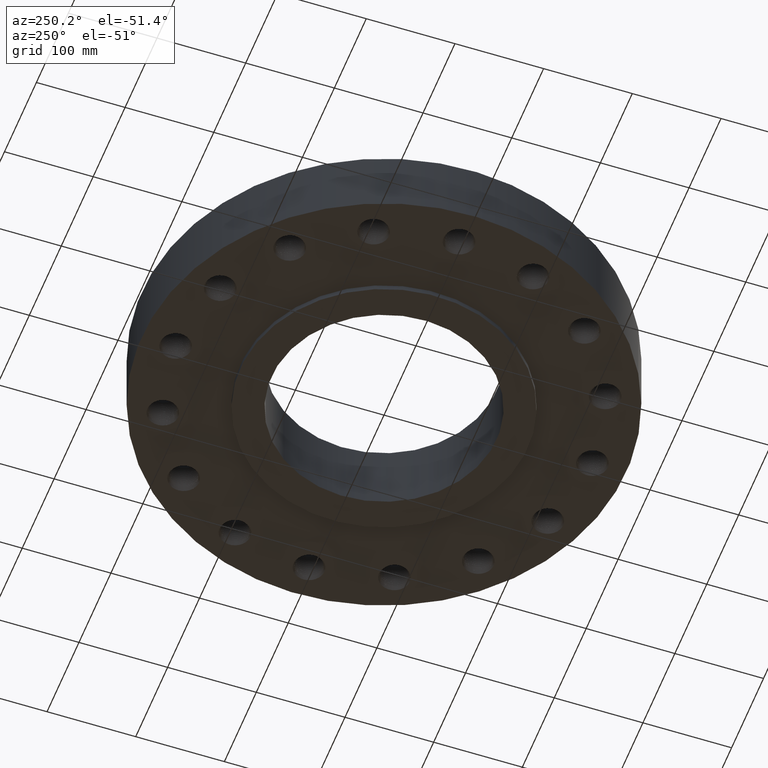
[diagram: clean part render]
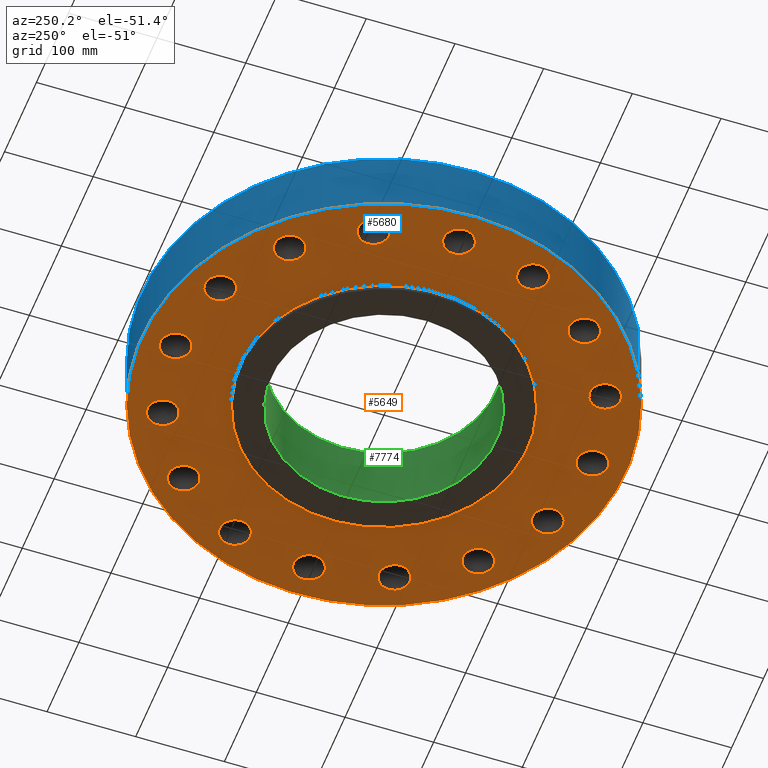
[diagram: same view with three faces highlighted in distinct colors, each labeled with its STEP entity id]
A machine part, auxiliary view with three faces highlighted in distinct colors.
Their STEP definitions:

[orange] entity #5649 — the highlighted planar face has unit normal (0, 0, -1).
#4832=AXIS2_PLACEMENT_3D('Circle Axis2P3D',#4830,#4831,$) ;
#4852=AXIS2_PLACEMENT_3D('Circle Axis2P3D',#4850,#4851,$) ;
#4872=AXIS2_PLACEMENT_3D('Circle Axis2P3D',#4870,#4871,$) ;
#4884=AXIS2_PLACEMENT_3D('Plane Axis2P3D',#4881,#4882,#4883) ;
#4888=AXIS2_PLACEMENT_3D('Circle Axis2P3D',#4886,#4887,$) ;
#4897=AXIS2_PLACEMENT_3D('Circle Axis2P3D',#4895,#4896,$) ;
#4913=AXIS2_PLACEMENT_3D('Circle Axis2P3D',#4911,#4912,$) ;
#4922=AXIS2_PLACEMENT_3D('Circle Axis2P3D',#4920,#4921,$) ;
#4931=AXIS2_PLACEMENT_3D('Circle Axis2P3D',#4929,#4930,$) ;
#4940=AXIS2_PLACEMENT_3D('Circle Axis2P3D',#4938,#4939,$) ;
#4947=AXIS2_PLACEMENT_3D('Circle Axis2P3D',#4945,#4946,$) ;
#4979=AXIS2_PLACEMENT_3D('Circle Axis2P3D',#4977,#4978,$) ;
#4988=AXIS2_PLACEMENT_3D('Circle Axis2P3D',#4986,#4987,$) ;
#4995=AXIS2_PLACEMENT_3D('Circle Axis2P3D',#4993,#4994,$) ;
#5027=AXIS2_PLACEMENT_3D('Circle Axis2P3D',#5025,#5026,$) ;
#5036=AXIS2_PLACEMENT_3D('Circle Axis2P3D',#5034,#5035,$) ;
#5043=AXIS2_PLACEMENT_3D('Circle Axis2P3D',#5041,#5042,$) ;
#5075=AXIS2_PLACEMENT_3D('Circle Axis2P3D',#5073,#5074,$) ;
#5084=AXIS2_PLACEMENT_3D('Circle Axis2P3D',#5082,#5083,$) ;
#5091=AXIS2_PLACEMENT_3D('Circle Axis2P3D',#5089,#5090,$) ;
#5123=AXIS2_PLACEMENT_3D('Circle Axis2P3D',#5121,#5122,$) ;
#5132=AXIS2_PLACEMENT_3D('Circle Axis2P3D',#5130,#5131,$) ;
#5139=AXIS2_PLACEMENT_3D('Circle Axis2P3D',#5137,#5138,$) ;
#5171=AXIS2_PLACEMENT_3D('Circle Axis2P3D',#5169,#5170,$) ;
#5180=AXIS2_PLACEMENT_3D('Circle Axis2P3D',#5178,#5179,$) ;
#5187=AXIS2_PLACEMENT_3D('Circle Axis2P3D',#5185,#5186,$) ;
#5219=AXIS2_PLACEMENT_3D('Circle Axis2P3D',#5217,#5218,$) ;
#5228=AXIS2_PLACEMENT_3D('Circle Axis2P3D',#5226,#5227,$) ;
#5235=AXIS2_PLACEMENT_3D('Circle Axis2P3D',#5233,#5234,$) ;
#5267=AXIS2_PLACEMENT_3D('Circle Axis2P3D',#5265,#5266,$) ;
#5276=AXIS2_PLACEMENT_3D('Circle Axis2P3D',#5274,#5275,$) ;
#5283=AXIS2_PLACEMENT_3D('Circle Axis2P3D',#5281,#5282,$) ;
#5315=AXIS2_PLACEMENT_3D('Circle Axis2P3D',#5313,#5314,$) ;
#5324=AXIS2_PLACEMENT_3D('Circle Axis2P3D',#5322,#5323,$) ;
#5331=AXIS2_PLACEMENT_3D('Circle Axis2P3D',#5329,#5330,$) ;
#5363=AXIS2_PLACEMENT_3D('Circle Axis2P3D',#5361,#5362,$) ;
#5372=AXIS2_PLACEMENT_3D('Circle Axis2P3D',#5370,#5371,$) ;
#5379=AXIS2_PLACEMENT_3D('Circle Axis2P3D',#5377,#5378,$) ;
#5411=AXIS2_PLACEMENT_3D('Circle Axis2P3D',#5409,#5410,$) ;
#5420=AXIS2_PLACEMENT_3D('Circle Axis2P3D',#5418,#5419,$) ;
#5427=AXIS2_PLACEMENT_3D('Circle Axis2P3D',#5425,#5426,$) ;
#5459=AXIS2_PLACEMENT_3D('Circle Axis2P3D',#5457,#5458,$) ;
#5468=AXIS2_PLACEMENT_3D('Circle Axis2P3D',#5466,#5467,$) ;
#5475=AXIS2_PLACEMENT_3D('Circle Axis2P3D',#5473,#5474,$) ;
#5507=AXIS2_PLACEMENT_3D('Circle Axis2P3D',#5505,#5506,$) ;
#5516=AXIS2_PLACEMENT_3D('Circle Axis2P3D',#5514,#5515,$) ;
#5523=AXIS2_PLACEMENT_3D('Circle Axis2P3D',#5521,#5522,$) ;
#5555=AXIS2_PLACEMENT_3D('Circle Axis2P3D',#5553,#5554,$) ;
#5564=AXIS2_PLACEMENT_3D('Circle Axis2P3D',#5562,#5563,$) ;
#5571=AXIS2_PLACEMENT_3D('Circle Axis2P3D',#5569,#5570,$) ;
#5603=AXIS2_PLACEMENT_3D('Circle Axis2P3D',#5601,#5602,$) ;
#5612=AXIS2_PLACEMENT_3D('Circle Axis2P3D',#5610,#5611,$) ;
#5619=AXIS2_PLACEMENT_3D('Circle Axis2P3D',#5617,#5618,$) ;
#4548=CARTESIAN_POINT('Vertex',(6.540737726,5.853237726,-2.18547839493E-018)) ;
#4768=CARTESIAN_POINT('Vertex',(6.62518375187,5.8609628598,0.)) ;
#4772=CARTESIAN_POINT('Control Point',(6.540737726,5.853237726,-3.71531327138E-017)) ;
#4773=CARTESIAN_POINT('Control Point',(6.56903599822,5.85407068798,-3.63382229676E-017)) ;
#4774=CARTESIAN_POINT('Control Point',(6.59725787459,5.85665382082,3.76526474164E-012)) ;
#4775=CARTESIAN_POINT('Control Point',(6.62518369888,5.86096269256,2.49635526598E-011)) ;
#4805=CARTESIAN_POINT('Control Point',(6.540737726,5.853237726,0.)) ;
#4806=CARTESIAN_POINT('Control Point',(6.51245362953,5.85407027076,1.35750257207E-019)) ;
#4807=CARTESIAN_POINT('Control Point',(6.48424563394,5.85665128492,-2.99739571654E-011)) ;
#4808=CARTESIAN_POINT('Control Point',(6.45633005505,5.86095794356,-8.63989031238E-011)) ;
#4809=CARTESIAN_POINT('Vertex',(6.4563300548,5.86095809624,0.)) ;
#4830=CARTESIAN_POINT('Axis2P3D Location',(6.540737726,6.540737726,8.74191357973E-018)) ;
#4834=CARTESIAN_POINT('Vertex',(5.9395936711,6.21233123206,8.74191357973E-018)) ;
#4850=CARTESIAN_POINT('Axis2P3D Location',(6.540737726,6.540737726,8.74191357973E-018)) ;
#4854=CARTESIAN_POINT('Vertex',(7.1418817809,6.86914421995,8.74191357973E-018)) ;
#4870=CARTESIAN_POINT('Axis2P3D Location',(6.540737726,6.540737726,8.74191357973E-018)) ;
#4881=CARTESIAN_POINT('Axis2P3D Location',(0.,10.75,0.)) ;
#4886=CARTESIAN_POINT('Axis2P3D Location',(0.,0.,0.)) ;
#4890=CARTESIAN_POINT('Vertex',(-5.15382454002,-9.43401254036,-4.25206676518E-014)) ;
#4892=CARTESIAN_POINT('Vertex',(5.15382454002,9.43401254036,-4.25206676518E-014)) ;
#4895=CARTESIAN_POINT('Axis2P3D Location',(0.,0.,0.)) ;
#4911=CARTESIAN_POINT('Axis2P3D Location',(0.,0.,0.)) ;
#4915=CARTESIAN_POINT('Vertex',(3.05633780861,5.59458883207,-3.02120533315E-014)) ;
#4917=CARTESIAN_POINT('Vertex',(-3.05633780861,-5.59458883207,-3.02120533315E-014)) ;
#4920=CARTESIAN_POINT('Axis2P3D Location',(0.,0.,0.)) ;
#4929=CARTESIAN_POINT('Axis2P3D Location',(8.54588567576,3.53982174939,0.)) ;
#4933=CARTESIAN_POINT('Vertex',(9.22694608849,3.61318191722,0.)) ;
#4935=CARTESIAN_POINT('Vertex',(8.36376505164,2.87947556876,0.)) ;
#4938=CARTESIAN_POINT('Axis2P3D Location',(8.54588567576,3.53982174939,0.)) ;
#4942=CARTESIAN_POINT('Vertex',(7.86482526304,3.46646158157,0.)) ;
#4945=CARTESIAN_POINT('Axis2P3D Location',(8.54588567576,3.53982174939,0.)) ;
#4949=CARTESIAN_POINT('Vertex',(8.20776275396,2.94408868018,0.)) ;
#4953=CARTESIAN_POINT('Control Point',(8.28279081601,2.90465457079,0.)) ;
#4954=CARTESIAN_POINT('Control Point',(8.26730331797,2.9116103865,0.)) ;
#4955=CARTESIAN_POINT('Control Point',(8.2520373231,2.9190414822,0.)) ;
#4956=CARTESIAN_POINT('Control Point',(8.23701258587,2.92693870424,0.)) ;
#4957=CARTESIAN_POINT('Control Point',(8.22224825759,2.93529162823,0.)) ;
#4958=CARTESIAN_POINT('Control Point',(8.20776275396,2.94408868018,0.)) ;
#4959=CARTESIAN_POINT('Vertex',(8.28279081601,2.90465457079,-2.18547839493E-018)) ;
#4963=CARTESIAN_POINT('Control Point',(8.28279081601,2.90465457079,0.)) ;
#4964=CARTESIAN_POINT('Control Point',(8.29866858917,2.89861873674,0.)) ;
#4965=CARTESIAN_POINT('Control Point',(8.31472598915,2.89307609536,0.)) ;
#4966=CARTESIAN_POINT('Control Point',(8.3309420806,2.88803414584,0.)) ;
#4967=CARTESIAN_POINT('Control Point',(8.34729559042,2.88349903929,0.)) ;
#4968=CARTESIAN_POINT('Control Point',(8.36376505164,2.87947556876,0.)) ;
#4977=CARTESIAN_POINT('Axis2P3D Location',(9.25000000004,2.23792987641E-015,0.)) ;
#4981=CARTESIAN_POINT('Vertex',(9.90729149658,-0.192854578834,0.)) ;
#4983=CARTESIAN_POINT('Vertex',(8.82903894001,-0.540385775114,0.)) ;
#4986=CARTESIAN_POINT('Axis2P3D Location',(9.25000000004,2.23792987641E-015,0.)) ;
#4990=CARTESIAN_POINT('Vertex',(8.59270850349,0.192854578834,6.11933950581E-017)) ;
#4993=CARTESIAN_POINT('Axis2P3D Location',(9.25000000004,2.23792987641E-015,0.)) ;
#4997=CARTESIAN_POINT('Vertex',(8.70963797742,-0.420991549227,0.)) ;
#5001=CARTESIAN_POINT('Control Point',(8.76386408797,-0.486135912068,0.)) ;
#5002=CARTESIAN_POINT('Control Point',(8.75221738095,-0.473782767393,0.)) ;
#5003=CARTESIAN_POINT('Control Point',(8.74095719796,-0.461075286858,0.)) ;
#5004=CARTESIAN_POINT('Control Point',(8.73009828679,-0.448029487041,0.)) ;
#5005=CARTESIAN_POINT('Control Point',(8.71965435171,-0.434662327712,0.)) ;
#5006=CARTESIAN_POINT('Control Point',(8.70963797742,-0.420991549227,0.)) ;
#5007=CARTESIAN_POINT('Vertex',(8.76386408797,-0.486135912068,-2.18547839493E-018)) ;
#5011=CARTESIAN_POINT('Control Point',(8.76386408797,-0.486135912068,0.)) ;
#5012=CARTESIAN_POINT('Control Point',(8.77622342392,-0.497788456338,0.)) ;
#5013=CARTESIAN_POINT('Control Point',(8.78893745008,-0.509054090209,0.)) ;
#5014=CARTESIAN_POINT('Control Point',(8.80198969453,-0.519917873709,0.)) ;
#5015=CARTESIAN_POINT('Control Point',(8.81536285739,-0.530365983096,0.)) ;
#5016=CARTESIAN_POINT('Control Point',(8.82903894001,-0.540385775114,0.)) ;
#5025=CARTESIAN_POINT('Axis2P3D Location',(8.54588567576,-3.53982174939,0.)) ;
#5029=CARTESIAN_POINT('Vertex',(9.07934158414,-3.96953071349,0.)) ;
#5031=CARTESIAN_POINT('Vertex',(7.9501716852,-3.87797828334,0.)) ;
#5034=CARTESIAN_POINT('Axis2P3D Location',(8.54588567576,-3.53982174939,0.)) ;
#5038=CARTESIAN_POINT('Vertex',(8.01242976739,-3.11011278529,0.)) ;
#5041=CARTESIAN_POINT('Axis2P3D Location',(8.54588567576,-3.53982174939,0.)) ;
#5045=CARTESIAN_POINT('Vertex',(7.88554977187,-3.72197963153,0.)) ;
#5049=CARTESIAN_POINT('Control Point',(7.91071849716,-3.80291660914,0.)) ;
#5050=CARTESIAN_POINT('Control Point',(7.90468568673,-3.78704678979,0.)) ;
#5051=CARTESIAN_POINT('Control Point',(7.8991455764,-3.77099752314,0.)) ;
#5052=CARTESIAN_POINT('Control Point',(7.89410566208,-3.7547892503,0.)) ;
#5053=CARTESIAN_POINT('Control Point',(7.88957211463,-3.73844288447,0.)) ;
#5054=CARTESIAN_POINT('Control Point',(7.88554977187,-3.72197963153,0.)) ;
#5055=CARTESIAN_POINT('Vertex',(7.91071849716,-3.80291660914,-2.18547839493E-018)) ;
#5059=CARTESIAN_POINT('Control Point',(7.91071849716,-3.80291660914,0.)) ;
#5060=CARTESIAN_POINT('Control Point',(7.91767779904,-3.8184118694,0.)) ;
#5061=CARTESIAN_POINT('Control Point',(7.92511285615,-3.83368540513,0.)) ;
#5062=CARTESIAN_POINT('Control Point',(7.93301416769,-3.84871711005,0.)) ;
#5063=CARTESIAN_POINT('Control Point',(7.94137104078,-3.86348759233,0.)) ;
#5064=CARTESIAN_POINT('Control Point',(7.9501716852,-3.87797828334,0.)) ;
#5073=CARTESIAN_POINT('Axis2P3D Location',(6.540737726,-6.540737726,0.)) ;
#5077=CARTESIAN_POINT('Vertex',(6.86914421995,-7.1418817809,0.)) ;
#5079=CARTESIAN_POINT('Vertex',(5.8609628598,-6.62518375189,0.)) ;
#5082=CARTESIAN_POINT('Axis2P3D Location',(6.540737726,-6.540737726,0.)) ;
#5086=CARTESIAN_POINT('Vertex',(6.21233123206,-5.9395936711,8.74191357973E-018)) ;
#5089=CARTESIAN_POINT('Axis2P3D Location',(6.540737726,-6.540737726,0.)) ;
#5093=CARTESIAN_POINT('Vertex',(5.86095809624,-6.45633005476,0.)) ;
#5097=CARTESIAN_POINT('Control Point',(5.853237726,-6.540737726,0.)) ;
#5098=CARTESIAN_POINT('Control Point',(5.85373725286,-6.52376726811,0.)) ;
#5099=CARTESIAN_POINT('Control Point',(5.85476064677,-6.5068195707,0.)) ;
#5100=CARTESIAN_POINT('Control Point',(5.85630701056,-6.48991638745,0.)) ;
#5101=CARTESIAN_POINT('Control Point',(5.85837404225,-6.47307940112,0.)) ;
#5102=CARTESIAN_POINT('Control Point',(5.86095809624,-6.45633005476,0.)) ;
#5103=CARTESIAN_POINT('Vertex',(5.853237726,-6.540737726,-2.18547839493E-018)) ;
#5107=CARTESIAN_POINT('Control Point',(5.853237726,-6.540737726,0.)) ;
#5108=CARTESIAN_POINT('Control Point',(5.85373750319,-6.55771668933,0.)) ;
#5109=CARTESIAN_POINT('Control Point',(5.8547616712,-6.57467286956,0.)) ;
#5110=CARTESIAN_POINT('Control Point',(5.85630914678,-6.5915840551,0.)) ;
#5111=CARTESIAN_POINT('Control Point',(5.85837747192,-6.60842823824,0.)) ;
#5112=CARTESIAN_POINT('Control Point',(5.8609628598,-6.62518375189,0.)) ;
#5121=CARTESIAN_POINT('Axis2P3D Location',(3.53982174939,-8.54588567576,0.)) ;
#5125=CARTESIAN_POINT('Vertex',(3.61318191722,-9.22694608849,0.)) ;
#5127=CARTESIAN_POINT('Vertex',(2.87947556876,-8.36376505164,0.)) ;
#5130=CARTESIAN_POINT('Axis2P3D Location',(3.53982174939,-8.54588567576,0.)) ;
#5134=CARTESIAN_POINT('Vertex',(3.46646158157,-7.86482526304,0.)) ;
#5137=CARTESIAN_POINT('Axis2P3D Location',(3.53982174939,-8.54588567576,0.)) ;
#5141=CARTESIAN_POINT('Vertex',(2.94408868019,-8.20776275395,0.)) ;
#5145=CARTESIAN_POINT('Control Point',(2.90465457079,-8.28279081601,0.)) ;
#5146=CARTESIAN_POINT('Control Point',(2.9116103865,-8.26730331796,0.)) ;
#5147=CARTESIAN_POINT('Control Point',(2.9190414822,-8.25203732309,0.)) ;
#5148=CARTESIAN_POINT('Control Point',(2.92693870425,-8.23701258586,0.)) ;
#5149=CARTESIAN_POINT('Control Point',(2.93529162824,-8.22224825758,0.)) ;
#5150=CARTESIAN_POINT('Control Point',(2.94408868019,-8.20776275395,0.)) ;
#5151=CARTESIAN_POINT('Vertex',(2.90465457079,-8.28279081601,-2.18547839493E-018)) ;
#5155=CARTESIAN_POINT('Control Point',(2.90465457079,-8.28279081601,0.)) ;
#5156=CARTESIAN_POINT('Control Point',(2.89861873674,-8.29866858917,0.)) ;
#5157=CARTESIAN_POINT('Control Point',(2.89307609535,-8.31472598915,0.)) ;
#5158=CARTESIAN_POINT('Control Point',(2.88803414584,-8.33094208061,0.)) ;
#5159=CARTESIAN_POINT('Control Point',(2.88349903929,-8.34729559042,0.)) ;
#5160=CARTESIAN_POINT('Control Point',(2.87947556876,-8.36376505164,0.)) ;
#5169=CARTESIAN_POINT('Axis2P3D Location',(2.30786518505E-015,-9.25000000004,0.)) ;
#5173=CARTESIAN_POINT('Vertex',(-0.192854578834,-9.90729149658,0.)) ;
#5175=CARTESIAN_POINT('Vertex',(-0.540385775117,-8.82903894002,0.)) ;
#5178=CARTESIAN_POINT('Axis2P3D Location',(1.53857679003E-015,-9.25000000004,0.)) ;
#5182=CARTESIAN_POINT('Vertex',(0.192854578834,-8.59270850349,6.11933950581E-017)) ;
#5185=CARTESIAN_POINT('Axis2P3D Location',(2.30786518505E-015,-9.25000000004,0.)) ;
#5189=CARTESIAN_POINT('Vertex',(-0.420991549216,-8.70963797741,0.)) ;
#5193=CARTESIAN_POINT('Control Point',(-0.486135912068,-8.76386408797,0.)) ;
#5194=CARTESIAN_POINT('Control Point',(-0.473782767391,-8.75221738095,0.)) ;
#5195=CARTESIAN_POINT('Control Point',(-0.461075286853,-8.74095719796,0.)) ;
#5196=CARTESIAN_POINT('Control Point',(-0.448029487034,-8.73009828679,0.)) ;
#5197=CARTESIAN_POINT('Control Point',(-0.434662327703,-8.7196543517,0.)) ;
#5198=CARTESIAN_POINT('Control Point',(-0.420991549216,-8.70963797741,0.)) ;
#5199=CARTESIAN_POINT('Vertex',(-0.486135912068,-8.76386408797,-2.18547839493E-018)) ;
#5203=CARTESIAN_POINT('Control Point',(-0.486135912068,-8.76386408797,0.)) ;
#5204=CARTESIAN_POINT('Control Point',(-0.497788456339,-8.77622342392,0.)) ;
#5205=CARTESIAN_POINT('Control Point',(-0.509054090211,-8.78893745009,0.)) ;
#5206=CARTESIAN_POINT('Control Point',(-0.519917873711,-8.80198969453,0.)) ;
#5207=CARTESIAN_POINT('Control Point',(-0.530365983099,-8.8153628574,0.)) ;
#5208=CARTESIAN_POINT('Control Point',(-0.540385775117,-8.82903894002,0.)) ;
#5217=CARTESIAN_POINT('Axis2P3D Location',(-3.53982174939,-8.54588567576,0.)) ;
#5221=CARTESIAN_POINT('Vertex',(-3.96953071349,-9.07934158414,0.)) ;
#5223=CARTESIAN_POINT('Vertex',(-3.87797828331,-7.95017168519,0.)) ;
#5226=CARTESIAN_POINT('Axis2P3D Location',(-3.53982174939,-8.54588567576,0.)) ;
#5230=CARTESIAN_POINT('Vertex',(-3.11011278529,-8.01242976739,0.)) ;
#5233=CARTESIAN_POINT('Axis2P3D Location',(-3.53982174939,-8.54588567576,0.)) ;
#5237=CARTESIAN_POINT('Vertex',(-3.72197963155,-7.88554977187,0.)) ;
#5241=CARTESIAN_POINT('Control Point',(-3.80291660914,-7.91071849716,0.)) ;
#5242=CARTESIAN_POINT('Control Point',(-3.7870467898,-7.90468568673,0.)) ;
#5243=CARTESIAN_POINT('Control Point',(-3.77099752315,-7.8991455764,0.)) ;
#5244=CARTESIAN_POINT('Control Point',(-3.75478925032,-7.89410566208,0.)) ;
#5245=CARTESIAN_POINT('Control Point',(-3.73844288448,-7.88957211463,0.)) ;
#5246=CARTESIAN_POINT('Control Point',(-3.72197963155,-7.88554977187,0.)) ;
#5247=CARTESIAN_POINT('Vertex',(-3.80291660914,-7.91071849716,-2.18547839493E-018)) ;
#5251=CARTESIAN_POINT('Control Point',(-3.80291660914,-7.91071849716,0.)) ;
#5252=CARTESIAN_POINT('Control Point',(-3.81841186939,-7.91767779904,0.)) ;
#5253=CARTESIAN_POINT('Control Point',(-3.83368540511,-7.92511285615,0.)) ;
#5254=CARTESIAN_POINT('Control Point',(-3.84871711003,-7.93301416768,0.)) ;
#5255=CARTESIAN_POINT('Control Point',(-3.86348759231,-7.94137104077,0.)) ;
#5256=CARTESIAN_POINT('Control Point',(-3.87797828331,-7.95017168519,0.)) ;
#5265=CARTESIAN_POINT('Axis2P3D Location',(-6.540737726,-6.540737726,0.)) ;
#5269=CARTESIAN_POINT('Vertex',(-7.1418817809,-6.86914421995,0.)) ;
#5271=CARTESIAN_POINT('Vertex',(-6.62518375189,-5.8609628598,0.)) ;
#5274=CARTESIAN_POINT('Axis2P3D Location',(-6.540737726,-6.540737726,0.)) ;
#5278=CARTESIAN_POINT('Vertex',(-5.9395936711,-6.21233123206,8.74191357973E-018)) ;
#5281=CARTESIAN_POINT('Axis2P3D Location',(-6.540737726,-6.540737726,0.)) ;
#5285=CARTESIAN_POINT('Vertex',(-6.45633005477,-5.86095809624,0.)) ;
#5289=CARTESIAN_POINT('Control Point',(-6.540737726,-5.853237726,0.)) ;
#5290=CARTESIAN_POINT('Control Point',(-6.52376726812,-5.85373725286,0.)) ;
#5291=CARTESIAN_POINT('Control Point',(-6.5068195707,-5.85476064677,0.)) ;
#5292=CARTESIAN_POINT('Control Point',(-6.48991638746,-5.85630701056,0.)) ;
#5293=CARTESIAN_POINT('Control Point',(-6.47307940113,-5.85837404225,0.)) ;
#5294=CARTESIAN_POINT('Control Point',(-6.45633005477,-5.86095809624,0.)) ;
#5295=CARTESIAN_POINT('Vertex',(-6.540737726,-5.853237726,-2.18547839493E-018)) ;
#5299=CARTESIAN_POINT('Control Point',(-6.540737726,-5.853237726,0.)) ;
#5300=CARTESIAN_POINT('Control Point',(-6.55771668934,-5.85373750319,0.)) ;
#5301=CARTESIAN_POINT('Control Point',(-6.57467286956,-5.8547616712,0.)) ;
#5302=CARTESIAN_POINT('Control Point',(-6.5915840551,-5.85630914678,0.)) ;
#5303=CARTESIAN_POINT('Control Point',(-6.60842823825,-5.85837747192,0.)) ;
#5304=CARTESIAN_POINT('Control Point',(-6.62518375189,-5.8609628598,0.)) ;
#5313=CARTESIAN_POINT('Axis2P3D Location',(-8.54588567576,-3.53982174939,0.)) ;
#5317=CARTESIAN_POINT('Vertex',(-9.22694608849,-3.61318191722,0.)) ;
#5319=CARTESIAN_POINT('Vertex',(-8.36376505163,-2.87947556876,0.)) ;
#5322=CARTESIAN_POINT('Axis2P3D Location',(-8.54588567576,-3.53982174939,0.)) ;
#5326=CARTESIAN_POINT('Vertex',(-7.86482526304,-3.46646158157,5.24514814784E-017)) ;
#5329=CARTESIAN_POINT('Axis2P3D Location',(-8.54588567576,-3.53982174939,0.)) ;
#5333=CARTESIAN_POINT('Vertex',(-8.20776275398,-2.94408868017,0.)) ;
#5337=CARTESIAN_POINT('Control Point',(-8.28279081601,-2.90465457079,0.)) ;
#5338=CARTESIAN_POINT('Control Point',(-8.26730331797,-2.9116103865,0.)) ;
#5339=CARTESIAN_POINT('Control Point',(-8.25203732311,-2.9190414822,0.)) ;
#5340=CARTESIAN_POINT('Control Point',(-8.23701258588,-2.92693870424,0.)) ;
#5341=CARTESIAN_POINT('Control Point',(-8.22224825761,-2.93529162822,0.)) ;
#5342=CARTESIAN_POINT('Control Point',(-8.20776275398,-2.94408868017,0.)) ;
#5343=CARTESIAN_POINT('Vertex',(-8.28279081601,-2.90465457079,-2.18547839493E-018)) ;
#5347=CARTESIAN_POINT('Control Point',(-8.28279081601,-2.90465457079,0.)) ;
#5348=CARTESIAN_POINT('Control Point',(-8.29866858916,-2.89861873674,0.)) ;
#5349=CARTESIAN_POINT('Control Point',(-8.31472598915,-2.89307609536,0.)) ;
#5350=CARTESIAN_POINT('Control Point',(-8.3309420806,-2.88803414584,0.)) ;
#5351=CARTESIAN_POINT('Control Point',(-8.34729559042,-2.88349903929,0.)) ;
#5352=CARTESIAN_POINT('Control Point',(-8.36376505163,-2.87947556876,0.)) ;
#5361=CARTESIAN_POINT('Axis2P3D Location',(-9.25000000004,-6.71378962923E-015,0.)) ;
#5365=CARTESIAN_POINT('Vertex',(-9.90729149658,0.192854578834,0.)) ;
#5367=CARTESIAN_POINT('Vertex',(-8.82903894001,0.54038577511,0.)) ;
#5370=CARTESIAN_POINT('Axis2P3D Location',(-9.25000000004,-4.47585975282E-015,0.)) ;
#5374=CARTESIAN_POINT('Vertex',(-8.59270850349,-0.192854578834,0.)) ;
#5377=CARTESIAN_POINT('Axis2P3D Location',(-9.25000000004,-6.71378962923E-015,0.)) ;
#5381=CARTESIAN_POINT('Vertex',(-8.7096379774,0.420991549196,0.)) ;
#5385=CARTESIAN_POINT('Control Point',(-8.76386408797,0.486135912068,0.)) ;
#5386=CARTESIAN_POINT('Control Point',(-8.75221738094,0.473782767386,0.)) ;
#5387=CARTESIAN_POINT('Control Point',(-8.74095719795,0.461075286844,0.)) ;
#5388=CARTESIAN_POINT('Control Point',(-8.73009828678,0.448029487021,0.)) ;
#5389=CARTESIAN_POINT('Control Point',(-8.71965435169,0.434662327686,0.)) ;
#5390=CARTESIAN_POINT('Control Point',(-8.7096379774,0.420991549196,0.)) ;
#5391=CARTESIAN_POINT('Vertex',(-8.76386408797,0.486135912068,-2.18547839493E-018)) ;
#5395=CARTESIAN_POINT('Control Point',(-8.76386408797,0.486135912068,0.)) ;
#5396=CARTESIAN_POINT('Control Point',(-8.77622342392,0.497788456337,0.)) ;
#5397=CARTESIAN_POINT('Control Point',(-8.78893745008,0.509054090207,0.)) ;
#5398=CARTESIAN_POINT('Control Point',(-8.80198969452,0.519917873705,0.)) ;
#5399=CARTESIAN_POINT('Control Point',(-8.81536285739,0.530365983093,0.)) ;
#5400=CARTESIAN_POINT('Control Point',(-8.82903894001,0.54038577511,0.)) ;
#5409=CARTESIAN_POINT('Axis2P3D Location',(-8.54588567576,3.53982174939,0.)) ;
#5413=CARTESIAN_POINT('Vertex',(-9.07934158414,3.96953071349,0.)) ;
#5415=CARTESIAN_POINT('Vertex',(-7.95017168521,3.87797828335,0.)) ;
#5418=CARTESIAN_POINT('Axis2P3D Location',(-8.54588567576,3.53982174939,0.)) ;
#5422=CARTESIAN_POINT('Vertex',(-8.01242976739,3.11011278529,0.)) ;
#5425=CARTESIAN_POINT('Axis2P3D Location',(-8.54588567576,3.53982174939,0.)) ;
#5429=CARTESIAN_POINT('Vertex',(-7.88554977186,3.72197963152,0.)) ;
#5433=CARTESIAN_POINT('Control Point',(-7.91071849716,3.80291660914,0.)) ;
#5434=CARTESIAN_POINT('Control Point',(-7.90468568673,3.78704678979,0.)) ;
#5435=CARTESIAN_POINT('Control Point',(-7.89914557639,3.77099752313,0.)) ;
#5436=CARTESIAN_POINT('Control Point',(-7.89410566207,3.75478925029,0.)) ;
#5437=CARTESIAN_POINT('Control Point',(-7.88957211462,3.73844288445,0.)) ;
#5438=CARTESIAN_POINT('Control Point',(-7.88554977186,3.72197963152,0.)) ;
#5439=CARTESIAN_POINT('Vertex',(-7.91071849716,3.80291660914,-2.18547839493E-018)) ;
#5443=CARTESIAN_POINT('Control Point',(-7.91071849716,3.80291660914,0.)) ;
#5444=CARTESIAN_POINT('Control Point',(-7.91767779904,3.8184118694,0.)) ;
#5445=CARTESIAN_POINT('Control Point',(-7.92511285616,3.83368540513,0.)) ;
#5446=CARTESIAN_POINT('Control Point',(-7.9330141677,3.84871711006,0.)) ;
#5447=CARTESIAN_POINT('Control Point',(-7.94137104079,3.86348759235,0.)) ;
#5448=CARTESIAN_POINT('Control Point',(-7.95017168521,3.87797828335,0.)) ;
#5457=CARTESIAN_POINT('Axis2P3D Location',(-6.540737726,6.540737726,0.)) ;
#5461=CARTESIAN_POINT('Vertex',(-6.86914421995,7.1418817809,0.)) ;
#5463=CARTESIAN_POINT('Vertex',(-5.8609628598,6.62518375188,0.)) ;
#5466=CARTESIAN_POINT('Axis2P3D Location',(-6.540737726,6.540737726,0.)) ;
#5470=CARTESIAN_POINT('Vertex',(-6.21233123206,5.9395936711,8.74191357973E-018)) ;
#5473=CARTESIAN_POINT('Axis2P3D Location',(-6.540737726,6.540737726,0.)) ;
#5477=CARTESIAN_POINT('Vertex',(-5.86095809624,6.45633005476,0.)) ;
#5481=CARTESIAN_POINT('Control Point',(-5.853237726,6.540737726,0.)) ;
#5482=CARTESIAN_POINT('Control Point',(-5.85373725286,6.52376726811,0.)) ;
#5483=CARTESIAN_POINT('Control Point',(-5.85476064677,6.5068195707,0.)) ;
#5484=CARTESIAN_POINT('Control Point',(-5.85630701056,6.48991638745,0.)) ;
#5485=CARTESIAN_POINT('Control Point',(-5.85837404225,6.47307940112,0.)) ;
#5486=CARTESIAN_POINT('Control Point',(-5.86095809624,6.45633005476,0.)) ;
#5487=CARTESIAN_POINT('Vertex',(-5.853237726,6.540737726,-2.18547839493E-018)) ;
#5491=CARTESIAN_POINT('Control Point',(-5.853237726,6.540737726,0.)) ;
#5492=CARTESIAN_POINT('Control Point',(-5.85373750319,6.55771668933,0.)) ;
#5493=CARTESIAN_POINT('Control Point',(-5.8547616712,6.57467286956,0.)) ;
#5494=CARTESIAN_POINT('Control Point',(-5.85630914678,6.5915840551,0.)) ;
#5495=CARTESIAN_POINT('Control Point',(-5.85837747192,6.60842823824,0.)) ;
#5496=CARTESIAN_POINT('Control Point',(-5.8609628598,6.62518375188,0.)) ;
#5505=CARTESIAN_POINT('Axis2P3D Location',(-3.53982174939,8.54588567576,0.)) ;
#5509=CARTESIAN_POINT('Vertex',(-3.61318191722,9.22694608849,0.)) ;
#5511=CARTESIAN_POINT('Vertex',(-2.87947556876,8.36376505163,0.)) ;
#5514=CARTESIAN_POINT('Axis2P3D Location',(-3.53982174939,8.54588567576,0.)) ;
#5518=CARTESIAN_POINT('Vertex',(-3.46646158157,7.86482526304,-1.22386790116E-016)) ;
#5521=CARTESIAN_POINT('Axis2P3D Location',(-3.53982174939,8.54588567576,0.)) ;
#5525=CARTESIAN_POINT('Vertex',(-2.94408868017,8.20776275397,0.)) ;
#5529=CARTESIAN_POINT('Control Point',(-2.90465457079,8.28279081601,0.)) ;
#5530=CARTESIAN_POINT('Control Point',(-2.9116103865,8.26730331797,0.)) ;
#5531=CARTESIAN_POINT('Control Point',(-2.9190414822,8.2520373231,0.)) ;
#5532=CARTESIAN_POINT('Control Point',(-2.92693870424,8.23701258587,0.)) ;
#5533=CARTESIAN_POINT('Control Point',(-2.93529162823,8.2222482576,0.)) ;
#5534=CARTESIAN_POINT('Control Point',(-2.94408868017,8.20776275397,0.)) ;
#5535=CARTESIAN_POINT('Vertex',(-2.90465457079,8.28279081601,-2.18547839493E-018)) ;
#5539=CARTESIAN_POINT('Control Point',(-2.90465457079,8.28279081601,0.)) ;
#5540=CARTESIAN_POINT('Control Point',(-2.89861873674,8.29866858916,0.)) ;
#5541=CARTESIAN_POINT('Control Point',(-2.89307609536,8.31472598915,0.)) ;
#5542=CARTESIAN_POINT('Control Point',(-2.88803414584,8.3309420806,0.)) ;
#5543=CARTESIAN_POINT('Control Point',(-2.88349903929,8.34729559042,0.)) ;
#5544=CARTESIAN_POINT('Control Point',(-2.87947556876,8.36376505163,0.)) ;
#5553=CARTESIAN_POINT('Axis2P3D Location',(-4.54579506146E-015,9.25000000004,0.)) ;
#5557=CARTESIAN_POINT('Vertex',(0.192854578834,9.90729149658,0.)) ;
#5559=CARTESIAN_POINT('Vertex',(0.540385775116,8.82903894001,0.)) ;
#5562=CARTESIAN_POINT('Axis2P3D Location',(-4.40592444418E-015,9.25000000004,0.)) ;
#5566=CARTESIAN_POINT('Vertex',(-0.192854578834,8.59270850349,0.)) ;
#5569=CARTESIAN_POINT('Axis2P3D Location',(-4.54579506146E-015,9.25000000004,0.)) ;
#5573=CARTESIAN_POINT('Vertex',(0.420991549215,8.70963797741,0.)) ;
#5577=CARTESIAN_POINT('Control Point',(0.486135912068,8.76386408797,0.)) ;
#5578=CARTESIAN_POINT('Control Point',(0.47378276739,8.75221738095,0.)) ;
#5579=CARTESIAN_POINT('Control Point',(0.461075286853,8.74095719796,0.)) ;
#5580=CARTESIAN_POINT('Control Point',(0.448029487033,8.73009828679,0.)) ;
#5581=CARTESIAN_POINT('Control Point',(0.434662327702,8.7196543517,0.)) ;
#5582=CARTESIAN_POINT('Control Point',(0.420991549215,8.70963797741,0.)) ;
#5583=CARTESIAN_POINT('Vertex',(0.486135912068,8.76386408797,-2.18547839493E-018)) ;
#5587=CARTESIAN_POINT('Control Point',(0.486135912068,8.76386408797,0.)) ;
#5588=CARTESIAN_POINT('Control Point',(0.497788456338,8.77622342392,0.)) ;
#5589=CARTESIAN_POINT('Control Point',(0.50905409021,8.78893745008,0.)) ;
#5590=CARTESIAN_POINT('Control Point',(0.51991787371,8.80198969453,0.)) ;
#5591=CARTESIAN_POINT('Control Point',(0.530365983098,8.81536285739,0.)) ;
#5592=CARTESIAN_POINT('Control Point',(0.540385775116,8.82903894001,0.)) ;
#5601=CARTESIAN_POINT('Axis2P3D Location',(3.53982174939,8.54588567576,0.)) ;
#5605=CARTESIAN_POINT('Vertex',(3.96953071349,9.07934158414,0.)) ;
#5607=CARTESIAN_POINT('Vertex',(3.87797828333,7.95017168519,0.)) ;
#5610=CARTESIAN_POINT('Axis2P3D Location',(3.53982174939,8.54588567576,0.)) ;
#5614=CARTESIAN_POINT('Vertex',(3.11011278529,8.01242976739,0.)) ;
#5617=CARTESIAN_POINT('Axis2P3D Location',(3.53982174939,8.54588567576,0.)) ;
#5621=CARTESIAN_POINT('Vertex',(3.72197963153,7.88554977186,0.)) ;
#5625=CARTESIAN_POINT('Control Point',(3.80291660914,7.91071849716,0.)) ;
#5626=CARTESIAN_POINT('Control Point',(3.78704678979,7.90468568673,0.)) ;
#5627=CARTESIAN_POINT('Control Point',(3.77099752314,7.8991455764,0.)) ;
#5628=CARTESIAN_POINT('Control Point',(3.7547892503,7.89410566207,0.)) ;
#5629=CARTESIAN_POINT('Control Point',(3.73844288446,7.88957211463,0.)) ;
#5630=CARTESIAN_POINT('Control Point',(3.72197963153,7.88554977186,0.)) ;
#5631=CARTESIAN_POINT('Vertex',(3.80291660914,7.91071849716,-2.18547839493E-018)) ;
#5635=CARTESIAN_POINT('Control Point',(3.80291660914,7.91071849716,0.)) ;
#5636=CARTESIAN_POINT('Control Point',(3.8184118694,7.91767779904,0.)) ;
#5637=CARTESIAN_POINT('Control Point',(3.83368540512,7.92511285615,0.)) ;
#5638=CARTESIAN_POINT('Control Point',(3.84871711004,7.93301416769,0.)) ;
#5639=CARTESIAN_POINT('Control Point',(3.86348759233,7.94137104078,0.)) ;
#5640=CARTESIAN_POINT('Control Point',(3.87797828333,7.95017168519,0.)) ;
#4831=DIRECTION('Axis2P3D Direction',(0.,0.,-0.0393700787402)) ;
#4851=DIRECTION('Axis2P3D Direction',(0.,0.,-0.0393700787402)) ;
#4871=DIRECTION('Axis2P3D Direction',(0.,0.,-0.0393700787402)) ;
#4882=DIRECTION('Axis2P3D Direction',(0.,0.,-0.0393700787402)) ;
#4883=DIRECTION('Axis2P3D XDirection',(0.0393700787402,0.,0.)) ;
#4887=DIRECTION('Axis2P3D Direction',(0.,0.,-0.0393700787402)) ;
#4896=DIRECTION('Axis2P3D Direction',(0.,0.,-0.0393700787402)) ;
#4912=DIRECTION('Axis2P3D Direction',(0.,0.,-0.0393700787402)) ;
#4921=DIRECTION('Axis2P3D Direction',(0.,0.,-0.0393700787402)) ;
#4930=DIRECTION('Axis2P3D Direction',(0.,0.,-0.0393700787402)) ;
#4939=DIRECTION('Axis2P3D Direction',(0.,0.,-0.0393700787402)) ;
#4946=DIRECTION('Axis2P3D Direction',(0.,0.,-0.0393700787402)) ;
#4978=DIRECTION('Axis2P3D Direction',(0.,0.,-0.0393700787402)) ;
#4987=DIRECTION('Axis2P3D Direction',(0.,0.,-0.0393700787402)) ;
#4994=DIRECTION('Axis2P3D Direction',(0.,0.,-0.0393700787402)) ;
#5026=DIRECTION('Axis2P3D Direction',(0.,0.,-0.0393700787402)) ;
#5035=DIRECTION('Axis2P3D Direction',(0.,0.,-0.0393700787402)) ;
#5042=DIRECTION('Axis2P3D Direction',(0.,0.,-0.0393700787402)) ;
#5074=DIRECTION('Axis2P3D Direction',(0.,0.,-0.0393700787402)) ;
#5083=DIRECTION('Axis2P3D Direction',(0.,0.,-0.0393700787402)) ;
#5090=DIRECTION('Axis2P3D Direction',(0.,0.,-0.0393700787402)) ;
#5122=DIRECTION('Axis2P3D Direction',(0.,0.,-0.0393700787402)) ;
#5131=DIRECTION('Axis2P3D Direction',(0.,0.,-0.0393700787402)) ;
#5138=DIRECTION('Axis2P3D Direction',(0.,0.,-0.0393700787402)) ;
#5170=DIRECTION('Axis2P3D Direction',(0.,0.,-0.0393700787402)) ;
#5179=DIRECTION('Axis2P3D Direction',(0.,0.,-0.0393700787402)) ;
#5186=DIRECTION('Axis2P3D Direction',(0.,0.,-0.0393700787402)) ;
#5218=DIRECTION('Axis2P3D Direction',(0.,0.,-0.0393700787402)) ;
#5227=DIRECTION('Axis2P3D Direction',(0.,0.,-0.0393700787402)) ;
#5234=DIRECTION('Axis2P3D Direction',(0.,0.,-0.0393700787402)) ;
#5266=DIRECTION('Axis2P3D Direction',(0.,0.,-0.0393700787402)) ;
#5275=DIRECTION('Axis2P3D Direction',(0.,0.,-0.0393700787402)) ;
#5282=DIRECTION('Axis2P3D Direction',(0.,0.,-0.0393700787402)) ;
#5314=DIRECTION('Axis2P3D Direction',(0.,0.,-0.0393700787402)) ;
#5323=DIRECTION('Axis2P3D Direction',(0.,0.,-0.0393700787402)) ;
#5330=DIRECTION('Axis2P3D Direction',(0.,0.,-0.0393700787402)) ;
#5362=DIRECTION('Axis2P3D Direction',(0.,0.,-0.0393700787402)) ;
#5371=DIRECTION('Axis2P3D Direction',(0.,0.,-0.0393700787402)) ;
#5378=DIRECTION('Axis2P3D Direction',(0.,0.,-0.0393700787402)) ;
#5410=DIRECTION('Axis2P3D Direction',(0.,0.,-0.0393700787402)) ;
#5419=DIRECTION('Axis2P3D Direction',(0.,0.,-0.0393700787402)) ;
#5426=DIRECTION('Axis2P3D Direction',(0.,0.,-0.0393700787402)) ;
#5458=DIRECTION('Axis2P3D Direction',(0.,0.,-0.0393700787402)) ;
#5467=DIRECTION('Axis2P3D Direction',(0.,0.,-0.0393700787402)) ;
#5474=DIRECTION('Axis2P3D Direction',(0.,0.,-0.0393700787402)) ;
#5506=DIRECTION('Axis2P3D Direction',(0.,0.,-0.0393700787402)) ;
#5515=DIRECTION('Axis2P3D Direction',(0.,0.,-0.0393700787402)) ;
#5522=DIRECTION('Axis2P3D Direction',(0.,0.,-0.0393700787402)) ;
#5554=DIRECTION('Axis2P3D Direction',(0.,0.,-0.0393700787402)) ;
#5563=DIRECTION('Axis2P3D Direction',(0.,0.,-0.0393700787402)) ;
#5570=DIRECTION('Axis2P3D Direction',(0.,0.,-0.0393700787402)) ;
#5602=DIRECTION('Axis2P3D Direction',(0.,0.,-0.0393700787402)) ;
#5611=DIRECTION('Axis2P3D Direction',(0.,0.,-0.0393700787402)) ;
#5618=DIRECTION('Axis2P3D Direction',(0.,0.,-0.0393700787402)) ;
#4901=ORIENTED_EDGE('',*,*,#4894,.T.) ;
#4902=ORIENTED_EDGE('',*,*,#4899,.T.) ;
#4905=ORIENTED_EDGE('',*,*,#4874,.F.) ;
#4906=ORIENTED_EDGE('',*,*,#4856,.F.) ;
#4907=ORIENTED_EDGE('',*,*,#4836,.F.) ;
#4908=ORIENTED_EDGE('',*,*,#4811,.F.) ;
#4909=ORIENTED_EDGE('',*,*,#4776,.T.) ;
#4926=ORIENTED_EDGE('',*,*,#4919,.F.) ;
#4927=ORIENTED_EDGE('',*,*,#4924,.F.) ;
#4971=ORIENTED_EDGE('',*,*,#4937,.F.) ;
#4972=ORIENTED_EDGE('',*,*,#4944,.F.) ;
#4973=ORIENTED_EDGE('',*,*,#4951,.F.) ;
#4974=ORIENTED_EDGE('',*,*,#4961,.F.) ;
#4975=ORIENTED_EDGE('',*,*,#4969,.T.) ;
#5019=ORIENTED_EDGE('',*,*,#4985,.F.) ;
#5020=ORIENTED_EDGE('',*,*,#4992,.F.) ;
#5021=ORIENTED_EDGE('',*,*,#4999,.F.) ;
#5022=ORIENTED_EDGE('',*,*,#5009,.F.) ;
#5023=ORIENTED_EDGE('',*,*,#5017,.T.) ;
#5067=ORIENTED_EDGE('',*,*,#5033,.F.) ;
#5068=ORIENTED_EDGE('',*,*,#5040,.F.) ;
#5069=ORIENTED_EDGE('',*,*,#5047,.F.) ;
#5070=ORIENTED_EDGE('',*,*,#5057,.F.) ;
#5071=ORIENTED_EDGE('',*,*,#5065,.T.) ;
#5115=ORIENTED_EDGE('',*,*,#5081,.F.) ;
#5116=ORIENTED_EDGE('',*,*,#5088,.F.) ;
#5117=ORIENTED_EDGE('',*,*,#5095,.F.) ;
#5118=ORIENTED_EDGE('',*,*,#5105,.F.) ;
#5119=ORIENTED_EDGE('',*,*,#5113,.T.) ;
#5163=ORIENTED_EDGE('',*,*,#5129,.F.) ;
#5164=ORIENTED_EDGE('',*,*,#5136,.F.) ;
#5165=ORIENTED_EDGE('',*,*,#5143,.F.) ;
#5166=ORIENTED_EDGE('',*,*,#5153,.F.) ;
#5167=ORIENTED_EDGE('',*,*,#5161,.T.) ;
#5211=ORIENTED_EDGE('',*,*,#5177,.F.) ;
#5212=ORIENTED_EDGE('',*,*,#5184,.F.) ;
#5213=ORIENTED_EDGE('',*,*,#5191,.F.) ;
#5214=ORIENTED_EDGE('',*,*,#5201,.F.) ;
#5215=ORIENTED_EDGE('',*,*,#5209,.T.) ;
#5259=ORIENTED_EDGE('',*,*,#5225,.F.) ;
#5260=ORIENTED_EDGE('',*,*,#5232,.F.) ;
#5261=ORIENTED_EDGE('',*,*,#5239,.F.) ;
#5262=ORIENTED_EDGE('',*,*,#5249,.F.) ;
#5263=ORIENTED_EDGE('',*,*,#5257,.T.) ;
#5307=ORIENTED_EDGE('',*,*,#5273,.F.) ;
#5308=ORIENTED_EDGE('',*,*,#5280,.F.) ;
#5309=ORIENTED_EDGE('',*,*,#5287,.F.) ;
#5310=ORIENTED_EDGE('',*,*,#5297,.F.) ;
#5311=ORIENTED_EDGE('',*,*,#5305,.T.) ;
#5355=ORIENTED_EDGE('',*,*,#5321,.F.) ;
#5356=ORIENTED_EDGE('',*,*,#5328,.F.) ;
#5357=ORIENTED_EDGE('',*,*,#5335,.F.) ;
#5358=ORIENTED_EDGE('',*,*,#5345,.F.) ;
#5359=ORIENTED_EDGE('',*,*,#5353,.T.) ;
#5403=ORIENTED_EDGE('',*,*,#5369,.F.) ;
#5404=ORIENTED_EDGE('',*,*,#5376,.F.) ;
#5405=ORIENTED_EDGE('',*,*,#5383,.F.) ;
#5406=ORIENTED_EDGE('',*,*,#5393,.F.) ;
#5407=ORIENTED_EDGE('',*,*,#5401,.T.) ;
#5451=ORIENTED_EDGE('',*,*,#5417,.F.) ;
#5452=ORIENTED_EDGE('',*,*,#5424,.F.) ;
#5453=ORIENTED_EDGE('',*,*,#5431,.F.) ;
#5454=ORIENTED_EDGE('',*,*,#5441,.F.) ;
#5455=ORIENTED_EDGE('',*,*,#5449,.T.) ;
#5499=ORIENTED_EDGE('',*,*,#5465,.F.) ;
#5500=ORIENTED_EDGE('',*,*,#5472,.F.) ;
#5501=ORIENTED_EDGE('',*,*,#5479,.F.) ;
#5502=ORIENTED_EDGE('',*,*,#5489,.F.) ;
#5503=ORIENTED_EDGE('',*,*,#5497,.T.) ;
#5547=ORIENTED_EDGE('',*,*,#5513,.F.) ;
#5548=ORIENTED_EDGE('',*,*,#5520,.F.) ;
#5549=ORIENTED_EDGE('',*,*,#5527,.F.) ;
#5550=ORIENTED_EDGE('',*,*,#5537,.F.) ;
#5551=ORIENTED_EDGE('',*,*,#5545,.T.) ;
#5595=ORIENTED_EDGE('',*,*,#5561,.F.) ;
#5596=ORIENTED_EDGE('',*,*,#5568,.F.) ;
#5597=ORIENTED_EDGE('',*,*,#5575,.F.) ;
#5598=ORIENTED_EDGE('',*,*,#5585,.F.) ;
#5599=ORIENTED_EDGE('',*,*,#5593,.T.) ;
#5643=ORIENTED_EDGE('',*,*,#5609,.F.) ;
#5644=ORIENTED_EDGE('',*,*,#5616,.F.) ;
#5645=ORIENTED_EDGE('',*,*,#5623,.F.) ;
#5646=ORIENTED_EDGE('',*,*,#5633,.F.) ;
#5647=ORIENTED_EDGE('',*,*,#5641,.T.) ;
#4910=FACE_BOUND('',#4904,.T.) ;
#4928=FACE_BOUND('',#4925,.T.) ;
#4976=FACE_BOUND('',#4970,.T.) ;
#5024=FACE_BOUND('',#5018,.T.) ;
#5072=FACE_BOUND('',#5066,.T.) ;
#5120=FACE_BOUND('',#5114,.T.) ;
#5168=FACE_BOUND('',#5162,.T.) ;
#5216=FACE_BOUND('',#5210,.T.) ;
#5264=FACE_BOUND('',#5258,.T.) ;
#5312=FACE_BOUND('',#5306,.T.) ;
#5360=FACE_BOUND('',#5354,.T.) ;
#5408=FACE_BOUND('',#5402,.T.) ;
#5456=FACE_BOUND('',#5450,.T.) ;
#5504=FACE_BOUND('',#5498,.T.) ;
#5552=FACE_BOUND('',#5546,.T.) ;
#5600=FACE_BOUND('',#5594,.T.) ;
#5648=FACE_BOUND('',#5642,.T.) ;
#5649=ADVANCED_FACE('PartBody',(#4903,#4910,#4928,#4976,#5024,#5072,#5120,#5168,#5216,#5264,#5312,#5360,#5408,#5456,#5504,#5552,#5600,#5648),#4885,.T.) ;
#4771=B_SPLINE_CURVE_WITH_KNOTS('',3,(#4772,#4773,#4774,#4775),.UNSPECIFIED.,.F.,.U.,(4,4),(0.,2.98299812423),.UNSPECIFIED.) ;
#4804=B_SPLINE_CURVE_WITH_KNOTS('',3,(#4805,#4806,#4807,#4808),.UNSPECIFIED.,.F.,.U.,(4,4),(0.,2.98150382055),.UNSPECIFIED.) ;
#4952=B_SPLINE_CURVE_WITH_KNOTS('',5,(#4953,#4954,#4955,#4956,#4957,#4958),.UNSPECIFIED.,.F.,.U.,(6,6),(0.,2.98150382156),.UNSPECIFIED.) ;
#4962=B_SPLINE_CURVE_WITH_KNOTS('',5,(#4963,#4964,#4965,#4966,#4967,#4968),.UNSPECIFIED.,.F.,.U.,(6,6),(0.,2.98299812439),.UNSPECIFIED.) ;
#5000=B_SPLINE_CURVE_WITH_KNOTS('',5,(#5001,#5002,#5003,#5004,#5005,#5006),.UNSPECIFIED.,.F.,.U.,(6,6),(0.,2.98150382064),.UNSPECIFIED.) ;
#5010=B_SPLINE_CURVE_WITH_KNOTS('',5,(#5011,#5012,#5013,#5014,#5015,#5016),.UNSPECIFIED.,.F.,.U.,(6,6),(0.,2.98299812465),.UNSPECIFIED.) ;
#5048=B_SPLINE_CURVE_WITH_KNOTS('',5,(#5049,#5050,#5051,#5052,#5053,#5054),.UNSPECIFIED.,.F.,.U.,(6,6),(0.,2.98150382123),.UNSPECIFIED.) ;
#5058=B_SPLINE_CURVE_WITH_KNOTS('',5,(#5059,#5060,#5061,#5062,#5063,#5064),.UNSPECIFIED.,.F.,.U.,(6,6),(0.,2.98299812467),.UNSPECIFIED.) ;
#5096=B_SPLINE_CURVE_WITH_KNOTS('',5,(#5097,#5098,#5099,#5100,#5101,#5102),.UNSPECIFIED.,.F.,.U.,(6,6),(0.,2.98150382209),.UNSPECIFIED.) ;
#5106=B_SPLINE_CURVE_WITH_KNOTS('',5,(#5107,#5108,#5109,#5110,#5111,#5112),.UNSPECIFIED.,.F.,.U.,(6,6),(0.,2.9829981248),.UNSPECIFIED.) ;
#5144=B_SPLINE_CURVE_WITH_KNOTS('',5,(#5145,#5146,#5147,#5148,#5149,#5150),.UNSPECIFIED.,.F.,.U.,(6,6),(0.,2.98150382217),.UNSPECIFIED.) ;
#5154=B_SPLINE_CURVE_WITH_KNOTS('',5,(#5155,#5156,#5157,#5158,#5159,#5160),.UNSPECIFIED.,.F.,.U.,(6,6),(0.,2.98299812459),.UNSPECIFIED.) ;
#5192=B_SPLINE_CURVE_WITH_KNOTS('',5,(#5193,#5194,#5195,#5196,#5197,#5198),.UNSPECIFIED.,.F.,.U.,(6,6),(0.,2.98150382119),.UNSPECIFIED.) ;
#5202=B_SPLINE_CURVE_WITH_KNOTS('',5,(#5203,#5204,#5205,#5206,#5207,#5208),.UNSPECIFIED.,.F.,.U.,(6,6),(0.,2.98299812486),.UNSPECIFIED.) ;
#5240=B_SPLINE_CURVE_WITH_KNOTS('',5,(#5241,#5242,#5243,#5244,#5245,#5246),.UNSPECIFIED.,.F.,.U.,(6,6),(0.,2.98150382053),.UNSPECIFIED.) ;
#5250=B_SPLINE_CURVE_WITH_KNOTS('',5,(#5251,#5252,#5253,#5254,#5255,#5256),.UNSPECIFIED.,.F.,.U.,(6,6),(0.,2.98299812348),.UNSPECIFIED.) ;
#5288=B_SPLINE_CURVE_WITH_KNOTS('',5,(#5289,#5290,#5291,#5292,#5293,#5294),.UNSPECIFIED.,.F.,.U.,(6,6),(0.,2.98150382169),.UNSPECIFIED.) ;
#5298=B_SPLINE_CURVE_WITH_KNOTS('',5,(#5299,#5300,#5301,#5302,#5303,#5304),.UNSPECIFIED.,.F.,.U.,(6,6),(0.,2.98299812492),.UNSPECIFIED.) ;
#5336=B_SPLINE_CURVE_WITH_KNOTS('',5,(#5337,#5338,#5339,#5340,#5341,#5342),.UNSPECIFIED.,.F.,.U.,(6,6),(0.,2.98150382066),.UNSPECIFIED.) ;
#5346=B_SPLINE_CURVE_WITH_KNOTS('',5,(#5347,#5348,#5349,#5350,#5351,#5352),.UNSPECIFIED.,.F.,.U.,(6,6),(0.,2.98299812415),.UNSPECIFIED.) ;
#5384=B_SPLINE_CURVE_WITH_KNOTS('',5,(#5385,#5386,#5387,#5388,#5389,#5390),.UNSPECIFIED.,.F.,.U.,(6,6),(0.,2.98150382223),.UNSPECIFIED.) ;
#5394=B_SPLINE_CURVE_WITH_KNOTS('',5,(#5395,#5396,#5397,#5398,#5399,#5400),.UNSPECIFIED.,.F.,.U.,(6,6),(0.,2.98299812434),.UNSPECIFIED.) ;
#5432=B_SPLINE_CURVE_WITH_KNOTS('',5,(#5433,#5434,#5435,#5436,#5437,#5438),.UNSPECIFIED.,.F.,.U.,(6,6),(0.,2.98150382193),.UNSPECIFIED.) ;
#5442=B_SPLINE_CURVE_WITH_KNOTS('',5,(#5443,#5444,#5445,#5446,#5447,#5448),.UNSPECIFIED.,.F.,.U.,(6,6),(0.,2.98299812532),.UNSPECIFIED.) ;
#5480=B_SPLINE_CURVE_WITH_KNOTS('',5,(#5481,#5482,#5483,#5484,#5485,#5486),.UNSPECIFIED.,.F.,.U.,(6,6),(0.,2.98150382211),.UNSPECIFIED.) ;
#5490=B_SPLINE_CURVE_WITH_KNOTS('',5,(#5491,#5492,#5493,#5494,#5495,#5496),.UNSPECIFIED.,.F.,.U.,(6,6),(0.,2.98299812472),.UNSPECIFIED.) ;
#5528=B_SPLINE_CURVE_WITH_KNOTS('',5,(#5529,#5530,#5531,#5532,#5533,#5534),.UNSPECIFIED.,.F.,.U.,(6,6),(0.,2.98150382123),.UNSPECIFIED.) ;
#5538=B_SPLINE_CURVE_WITH_KNOTS('',5,(#5539,#5540,#5541,#5542,#5543,#5544),.UNSPECIFIED.,.F.,.U.,(6,6),(0.,2.98299812416),.UNSPECIFIED.) ;
#5576=B_SPLINE_CURVE_WITH_KNOTS('',5,(#5577,#5578,#5579,#5580,#5581,#5582),.UNSPECIFIED.,.F.,.U.,(6,6),(0.,2.98150382123),.UNSPECIFIED.) ;
#5586=B_SPLINE_CURVE_WITH_KNOTS('',5,(#5587,#5588,#5589,#5590,#5591,#5592),.UNSPECIFIED.,.F.,.U.,(6,6),(0.,2.98299812475),.UNSPECIFIED.) ;
#5624=B_SPLINE_CURVE_WITH_KNOTS('',5,(#5625,#5626,#5627,#5628,#5629,#5630),.UNSPECIFIED.,.F.,.U.,(6,6),(0.,2.98150382156),.UNSPECIFIED.) ;
#5634=B_SPLINE_CURVE_WITH_KNOTS('',5,(#5635,#5636,#5637,#5638,#5639,#5640),.UNSPECIFIED.,.F.,.U.,(6,6),(0.,2.98299812423),.UNSPECIFIED.) ;
#4833=CIRCLE('generated circle',#4832,0.685000000003) ;
#4853=CIRCLE('generated circle',#4852,0.685000000003) ;
#4873=CIRCLE('generated circle',#4872,0.685000000003) ;
#4889=CIRCLE('generated circle',#4888,10.75) ;
#4898=CIRCLE('generated circle',#4897,10.75) ;
#4914=CIRCLE('generated circle',#4913,6.37500000003) ;
#4923=CIRCLE('generated circle',#4922,6.37500000003) ;
#4932=CIRCLE('generated circle',#4931,0.685000000003) ;
#4941=CIRCLE('generated circle',#4940,0.685000000003) ;
#4948=CIRCLE('generated circle',#4947,0.685000000003) ;
#4980=CIRCLE('generated circle',#4979,0.685000000003) ;
#4989=CIRCLE('generated circle',#4988,0.685000000003) ;
#4996=CIRCLE('generated circle',#4995,0.685000000003) ;
#5028=CIRCLE('generated circle',#5027,0.685000000003) ;
#5037=CIRCLE('generated circle',#5036,0.685000000003) ;
#5044=CIRCLE('generated circle',#5043,0.685000000003) ;
#5076=CIRCLE('generated circle',#5075,0.685000000003) ;
#5085=CIRCLE('generated circle',#5084,0.685000000003) ;
#5092=CIRCLE('generated circle',#5091,0.685000000003) ;
#5124=CIRCLE('generated circle',#5123,0.685000000003) ;
#5133=CIRCLE('generated circle',#5132,0.685000000003) ;
#5140=CIRCLE('generated circle',#5139,0.685000000003) ;
#5172=CIRCLE('generated circle',#5171,0.685000000003) ;
#5181=CIRCLE('generated circle',#5180,0.685000000003) ;
#5188=CIRCLE('generated circle',#5187,0.685000000003) ;
#5220=CIRCLE('generated circle',#5219,0.685000000003) ;
#5229=CIRCLE('generated circle',#5228,0.685000000003) ;
#5236=CIRCLE('generated circle',#5235,0.685000000003) ;
#5268=CIRCLE('generated circle',#5267,0.685000000003) ;
#5277=CIRCLE('generated circle',#5276,0.685000000003) ;
#5284=CIRCLE('generated circle',#5283,0.685000000003) ;
#5316=CIRCLE('generated circle',#5315,0.685000000003) ;
#5325=CIRCLE('generated circle',#5324,0.685000000003) ;
#5332=CIRCLE('generated circle',#5331,0.685000000003) ;
#5364=CIRCLE('generated circle',#5363,0.685000000003) ;
#5373=CIRCLE('generated circle',#5372,0.685000000003) ;
#5380=CIRCLE('generated circle',#5379,0.685000000003) ;
#5412=CIRCLE('generated circle',#5411,0.685000000003) ;
#5421=CIRCLE('generated circle',#5420,0.685000000003) ;
#5428=CIRCLE('generated circle',#5427,0.685000000003) ;
#5460=CIRCLE('generated circle',#5459,0.685000000003) ;
#5469=CIRCLE('generated circle',#5468,0.685000000003) ;
#5476=CIRCLE('generated circle',#5475,0.685000000003) ;
#5508=CIRCLE('generated circle',#5507,0.685000000003) ;
#5517=CIRCLE('generated circle',#5516,0.685000000003) ;
#5524=CIRCLE('generated circle',#5523,0.685000000003) ;
#5556=CIRCLE('generated circle',#5555,0.685000000003) ;
#5565=CIRCLE('generated circle',#5564,0.685000000003) ;
#5572=CIRCLE('generated circle',#5571,0.685000000003) ;
#5604=CIRCLE('generated circle',#5603,0.685000000003) ;
#5613=CIRCLE('generated circle',#5612,0.685000000003) ;
#5620=CIRCLE('generated circle',#5619,0.685000000003) ;
#4776=EDGE_CURVE('',#4549,#4769,#4771,.T.) ;
#4811=EDGE_CURVE('',#4549,#4810,#4804,.T.) ;
#4836=EDGE_CURVE('',#4810,#4835,#4833,.T.) ;
#4856=EDGE_CURVE('',#4835,#4855,#4853,.T.) ;
#4874=EDGE_CURVE('',#4855,#4769,#4873,.T.) ;
#4894=EDGE_CURVE('',#4891,#4893,#4889,.T.) ;
#4899=EDGE_CURVE('',#4893,#4891,#4898,.T.) ;
#4919=EDGE_CURVE('',#4916,#4918,#4914,.T.) ;
#4924=EDGE_CURVE('',#4918,#4916,#4923,.T.) ;
#4937=EDGE_CURVE('',#4934,#4936,#4932,.T.) ;
#4944=EDGE_CURVE('',#4943,#4934,#4941,.T.) ;
#4951=EDGE_CURVE('',#4950,#4943,#4948,.T.) ;
#4961=EDGE_CURVE('',#4960,#4950,#4952,.T.) ;
#4969=EDGE_CURVE('',#4960,#4936,#4962,.T.) ;
#4985=EDGE_CURVE('',#4982,#4984,#4980,.T.) ;
#4992=EDGE_CURVE('',#4991,#4982,#4989,.T.) ;
#4999=EDGE_CURVE('',#4998,#4991,#4996,.T.) ;
#5009=EDGE_CURVE('',#5008,#4998,#5000,.T.) ;
#5017=EDGE_CURVE('',#5008,#4984,#5010,.T.) ;
#5033=EDGE_CURVE('',#5030,#5032,#5028,.T.) ;
#5040=EDGE_CURVE('',#5039,#5030,#5037,.T.) ;
#5047=EDGE_CURVE('',#5046,#5039,#5044,.T.) ;
#5057=EDGE_CURVE('',#5056,#5046,#5048,.T.) ;
#5065=EDGE_CURVE('',#5056,#5032,#5058,.T.) ;
#5081=EDGE_CURVE('',#5078,#5080,#5076,.T.) ;
#5088=EDGE_CURVE('',#5087,#5078,#5085,.T.) ;
#5095=EDGE_CURVE('',#5094,#5087,#5092,.T.) ;
#5105=EDGE_CURVE('',#5104,#5094,#5096,.T.) ;
#5113=EDGE_CURVE('',#5104,#5080,#5106,.T.) ;
#5129=EDGE_CURVE('',#5126,#5128,#5124,.T.) ;
#5136=EDGE_CURVE('',#5135,#5126,#5133,.T.) ;
#5143=EDGE_CURVE('',#5142,#5135,#5140,.T.) ;
#5153=EDGE_CURVE('',#5152,#5142,#5144,.T.) ;
#5161=EDGE_CURVE('',#5152,#5128,#5154,.T.) ;
#5177=EDGE_CURVE('',#5174,#5176,#5172,.T.) ;
#5184=EDGE_CURVE('',#5183,#5174,#5181,.T.) ;
#5191=EDGE_CURVE('',#5190,#5183,#5188,.T.) ;
#5201=EDGE_CURVE('',#5200,#5190,#5192,.T.) ;
#5209=EDGE_CURVE('',#5200,#5176,#5202,.T.) ;
#5225=EDGE_CURVE('',#5222,#5224,#5220,.T.) ;
#5232=EDGE_CURVE('',#5231,#5222,#5229,.T.) ;
#5239=EDGE_CURVE('',#5238,#5231,#5236,.T.) ;
#5249=EDGE_CURVE('',#5248,#5238,#5240,.T.) ;
#5257=EDGE_CURVE('',#5248,#5224,#5250,.T.) ;
#5273=EDGE_CURVE('',#5270,#5272,#5268,.T.) ;
#5280=EDGE_CURVE('',#5279,#5270,#5277,.T.) ;
#5287=EDGE_CURVE('',#5286,#5279,#5284,.T.) ;
#5297=EDGE_CURVE('',#5296,#5286,#5288,.T.) ;
#5305=EDGE_CURVE('',#5296,#5272,#5298,.T.) ;
#5321=EDGE_CURVE('',#5318,#5320,#5316,.T.) ;
#5328=EDGE_CURVE('',#5327,#5318,#5325,.T.) ;
#5335=EDGE_CURVE('',#5334,#5327,#5332,.T.) ;
#5345=EDGE_CURVE('',#5344,#5334,#5336,.T.) ;
#5353=EDGE_CURVE('',#5344,#5320,#5346,.T.) ;
#5369=EDGE_CURVE('',#5366,#5368,#5364,.T.) ;
#5376=EDGE_CURVE('',#5375,#5366,#5373,.T.) ;
#5383=EDGE_CURVE('',#5382,#5375,#5380,.T.) ;
#5393=EDGE_CURVE('',#5392,#5382,#5384,.T.) ;
#5401=EDGE_CURVE('',#5392,#5368,#5394,.T.) ;
#5417=EDGE_CURVE('',#5414,#5416,#5412,.T.) ;
#5424=EDGE_CURVE('',#5423,#5414,#5421,.T.) ;
#5431=EDGE_CURVE('',#5430,#5423,#5428,.T.) ;
#5441=EDGE_CURVE('',#5440,#5430,#5432,.T.) ;
#5449=EDGE_CURVE('',#5440,#5416,#5442,.T.) ;
#5465=EDGE_CURVE('',#5462,#5464,#5460,.T.) ;
#5472=EDGE_CURVE('',#5471,#5462,#5469,.T.) ;
#5479=EDGE_CURVE('',#5478,#5471,#5476,.T.) ;
#5489=EDGE_CURVE('',#5488,#5478,#5480,.T.) ;
#5497=EDGE_CURVE('',#5488,#5464,#5490,.T.) ;
#5513=EDGE_CURVE('',#5510,#5512,#5508,.T.) ;
#5520=EDGE_CURVE('',#5519,#5510,#5517,.T.) ;
#5527=EDGE_CURVE('',#5526,#5519,#5524,.T.) ;
#5537=EDGE_CURVE('',#5536,#5526,#5528,.T.) ;
#5545=EDGE_CURVE('',#5536,#5512,#5538,.T.) ;
#5561=EDGE_CURVE('',#5558,#5560,#5556,.T.) ;
#5568=EDGE_CURVE('',#5567,#5558,#5565,.T.) ;
#5575=EDGE_CURVE('',#5574,#5567,#5572,.T.) ;
#5585=EDGE_CURVE('',#5584,#5574,#5576,.T.) ;
#5593=EDGE_CURVE('',#5584,#5560,#5586,.T.) ;
#5609=EDGE_CURVE('',#5606,#5608,#5604,.T.) ;
#5616=EDGE_CURVE('',#5615,#5606,#5613,.T.) ;
#5623=EDGE_CURVE('',#5622,#5615,#5620,.T.) ;
#5633=EDGE_CURVE('',#5632,#5622,#5624,.T.) ;
#5641=EDGE_CURVE('',#5632,#5608,#5634,.T.) ;
#4900=EDGE_LOOP('',(#4901,#4902)) ;
#4904=EDGE_LOOP('',(#4905,#4906,#4907,#4908,#4909)) ;
#4925=EDGE_LOOP('',(#4926,#4927)) ;
#4970=EDGE_LOOP('',(#4971,#4972,#4973,#4974,#4975)) ;
#5018=EDGE_LOOP('',(#5019,#5020,#5021,#5022,#5023)) ;
#5066=EDGE_LOOP('',(#5067,#5068,#5069,#5070,#5071)) ;
#5114=EDGE_LOOP('',(#5115,#5116,#5117,#5118,#5119)) ;
#5162=EDGE_LOOP('',(#5163,#5164,#5165,#5166,#5167)) ;
#5210=EDGE_LOOP('',(#5211,#5212,#5213,#5214,#5215)) ;
#5258=EDGE_LOOP('',(#5259,#5260,#5261,#5262,#5263)) ;
#5306=EDGE_LOOP('',(#5307,#5308,#5309,#5310,#5311)) ;
#5354=EDGE_LOOP('',(#5355,#5356,#5357,#5358,#5359)) ;
#5402=EDGE_LOOP('',(#5403,#5404,#5405,#5406,#5407)) ;
#5450=EDGE_LOOP('',(#5451,#5452,#5453,#5454,#5455)) ;
#5498=EDGE_LOOP('',(#5499,#5500,#5501,#5502,#5503)) ;
#5546=EDGE_LOOP('',(#5547,#5548,#5549,#5550,#5551)) ;
#5594=EDGE_LOOP('',(#5595,#5596,#5597,#5598,#5599)) ;
#5642=EDGE_LOOP('',(#5643,#5644,#5645,#5646,#5647)) ;
#4903=FACE_OUTER_BOUND('',#4900,.T.) ;
#4885=PLANE('',#4884) ;
#4549=VERTEX_POINT('',#4548) ;
#4769=VERTEX_POINT('',#4768) ;
#4810=VERTEX_POINT('',#4809) ;
#4835=VERTEX_POINT('',#4834) ;
#4855=VERTEX_POINT('',#4854) ;
#4891=VERTEX_POINT('',#4890) ;
#4893=VERTEX_POINT('',#4892) ;
#4916=VERTEX_POINT('',#4915) ;
#4918=VERTEX_POINT('',#4917) ;
#4934=VERTEX_POINT('',#4933) ;
#4936=VERTEX_POINT('',#4935) ;
#4943=VERTEX_POINT('',#4942) ;
#4950=VERTEX_POINT('',#4949) ;
#4960=VERTEX_POINT('',#4959) ;
#4982=VERTEX_POINT('',#4981) ;
#4984=VERTEX_POINT('',#4983) ;
#4991=VERTEX_POINT('',#4990) ;
#4998=VERTEX_POINT('',#4997) ;
#5008=VERTEX_POINT('',#5007) ;
#5030=VERTEX_POINT('',#5029) ;
#5032=VERTEX_POINT('',#5031) ;
#5039=VERTEX_POINT('',#5038) ;
#5046=VERTEX_POINT('',#5045) ;
#5056=VERTEX_POINT('',#5055) ;
#5078=VERTEX_POINT('',#5077) ;
#5080=VERTEX_POINT('',#5079) ;
#5087=VERTEX_POINT('',#5086) ;
#5094=VERTEX_POINT('',#5093) ;
#5104=VERTEX_POINT('',#5103) ;
#5126=VERTEX_POINT('',#5125) ;
#5128=VERTEX_POINT('',#5127) ;
#5135=VERTEX_POINT('',#5134) ;
#5142=VERTEX_POINT('',#5141) ;
#5152=VERTEX_POINT('',#5151) ;
#5174=VERTEX_POINT('',#5173) ;
#5176=VERTEX_POINT('',#5175) ;
#5183=VERTEX_POINT('',#5182) ;
#5190=VERTEX_POINT('',#5189) ;
#5200=VERTEX_POINT('',#5199) ;
#5222=VERTEX_POINT('',#5221) ;
#5224=VERTEX_POINT('',#5223) ;
#5231=VERTEX_POINT('',#5230) ;
#5238=VERTEX_POINT('',#5237) ;
#5248=VERTEX_POINT('',#5247) ;
#5270=VERTEX_POINT('',#5269) ;
#5272=VERTEX_POINT('',#5271) ;
#5279=VERTEX_POINT('',#5278) ;
#5286=VERTEX_POINT('',#5285) ;
#5296=VERTEX_POINT('',#5295) ;
#5318=VERTEX_POINT('',#5317) ;
#5320=VERTEX_POINT('',#5319) ;
#5327=VERTEX_POINT('',#5326) ;
#5334=VERTEX_POINT('',#5333) ;
#5344=VERTEX_POINT('',#5343) ;
#5366=VERTEX_POINT('',#5365) ;
#5368=VERTEX_POINT('',#5367) ;
#5375=VERTEX_POINT('',#5374) ;
#5382=VERTEX_POINT('',#5381) ;
#5392=VERTEX_POINT('',#5391) ;
#5414=VERTEX_POINT('',#5413) ;
#5416=VERTEX_POINT('',#5415) ;
#5423=VERTEX_POINT('',#5422) ;
#5430=VERTEX_POINT('',#5429) ;
#5440=VERTEX_POINT('',#5439) ;
#5462=VERTEX_POINT('',#5461) ;
#5464=VERTEX_POINT('',#5463) ;
#5471=VERTEX_POINT('',#5470) ;
#5478=VERTEX_POINT('',#5477) ;
#5488=VERTEX_POINT('',#5487) ;
#5510=VERTEX_POINT('',#5509) ;
#5512=VERTEX_POINT('',#5511) ;
#5519=VERTEX_POINT('',#5518) ;
#5526=VERTEX_POINT('',#5525) ;
#5536=VERTEX_POINT('',#5535) ;
#5558=VERTEX_POINT('',#5557) ;
#5560=VERTEX_POINT('',#5559) ;
#5567=VERTEX_POINT('',#5566) ;
#5574=VERTEX_POINT('',#5573) ;
#5584=VERTEX_POINT('',#5583) ;
#5606=VERTEX_POINT('',#5605) ;
#5608=VERTEX_POINT('',#5607) ;
#5615=VERTEX_POINT('',#5614) ;
#5622=VERTEX_POINT('',#5621) ;
#5632=VERTEX_POINT('',#5631) ;

[blue] entity #5680 — the highlighted cylindrical surface (partial cylindrical patch) has radius 273.05 mm, axis along (0, 0, -1).
#4888=AXIS2_PLACEMENT_3D('Circle Axis2P3D',#4886,#4887,$) ;
#5653=AXIS2_PLACEMENT_3D('Cylinder Axis2P3D',#5650,#5651,#5652) ;
#5664=AXIS2_PLACEMENT_3D('Circle Axis2P3D',#5662,#5663,$) ;
#4886=CARTESIAN_POINT('Axis2P3D Location',(0.,0.,0.)) ;
#4890=CARTESIAN_POINT('Vertex',(-5.15382454002,-9.43401254036,-4.25206676518E-014)) ;
#4892=CARTESIAN_POINT('Vertex',(5.15382454002,9.43401254036,-4.25206676518E-014)) ;
#5650=CARTESIAN_POINT('Axis2P3D Location',(0.,0.,1.37500000001)) ;
#5655=CARTESIAN_POINT('Line Origine',(-5.15382454002,-9.43401254036,1.50000000001)) ;
#5659=CARTESIAN_POINT('Vertex',(-5.15382454002,-9.43401254036,3.00000000001)) ;
#5662=CARTESIAN_POINT('Axis2P3D Location',(0.,0.,3.00000000001)) ;
#5666=CARTESIAN_POINT('Vertex',(5.15382454002,9.43401254036,3.00000000001)) ;
#5669=CARTESIAN_POINT('Line Origine',(5.15382454002,9.43401254036,1.50000000001)) ;
#4887=DIRECTION('Axis2P3D Direction',(0.,0.,-0.0393700787402)) ;
#5651=DIRECTION('Axis2P3D Direction',(0.,0.,-0.0393700787402)) ;
#5652=DIRECTION('Axis2P3D XDirection',(0.0188750212049,0.0345504945626,0.)) ;
#5656=DIRECTION('Vector Direction',(0.,0.,-0.0393700787402)) ;
#5663=DIRECTION('Axis2P3D Direction',(0.,0.,-0.0393700787402)) ;
#5670=DIRECTION('Vector Direction',(0.,0.,-0.0393700787402)) ;
#5657=VECTOR('Line Direction',#5656,0.0393700787402) ;
#5671=VECTOR('Line Direction',#5670,0.0393700787402) ;
#5675=ORIENTED_EDGE('',*,*,#4894,.F.) ;
#5676=ORIENTED_EDGE('',*,*,#5661,.T.) ;
#5677=ORIENTED_EDGE('',*,*,#5668,.T.) ;
#5678=ORIENTED_EDGE('',*,*,#5673,.F.) ;
#5680=ADVANCED_FACE('PartBody',(#5679),#5654,.T.) ;
#4889=CIRCLE('generated circle',#4888,10.75) ;
#5665=CIRCLE('generated circle',#5664,10.75) ;
#5654=CYLINDRICAL_SURFACE('generated cylinder',#5653,10.75) ;
#4894=EDGE_CURVE('',#4891,#4893,#4889,.T.) ;
#5661=EDGE_CURVE('',#4891,#5660,#5658,.F.) ;
#5668=EDGE_CURVE('',#5660,#5667,#5665,.T.) ;
#5673=EDGE_CURVE('',#4893,#5667,#5672,.F.) ;
#5674=EDGE_LOOP('',(#5675,#5676,#5677,#5678)) ;
#5679=FACE_OUTER_BOUND('',#5674,.T.) ;
#5658=LINE('Line',#5655,#5657) ;
#5672=LINE('Line',#5669,#5671) ;
#4891=VERTEX_POINT('',#4890) ;
#4893=VERTEX_POINT('',#4892) ;
#5660=VERTEX_POINT('',#5659) ;
#5667=VERTEX_POINT('',#5666) ;

[green] entity #7774 — the highlighted cylindrical surface (partial cylindrical patch) has radius 127 mm, axis along (0, 0, -1).
#7727=AXIS2_PLACEMENT_3D('Circle Axis2P3D',#7725,#7726,$) ;
#7747=AXIS2_PLACEMENT_3D('Cylinder Axis2P3D',#7744,#7745,#7746) ;
#7751=AXIS2_PLACEMENT_3D('Circle Axis2P3D',#7749,#7750,$) ;
#7725=CARTESIAN_POINT('Axis2P3D Location',(0.,0.,-0.250000000001)) ;
#7729=CARTESIAN_POINT('Vertex',(2.39712769303,4.38791280947,-0.250000000001)) ;
#7731=CARTESIAN_POINT('Vertex',(-2.39712769303,-4.38791280947,-0.250000000001)) ;
#7744=CARTESIAN_POINT('Axis2P3D Location',(0.,0.,1.37500000001)) ;
#7749=CARTESIAN_POINT('Axis2P3D Location',(0.,0.,3.00000000001)) ;
#7753=CARTESIAN_POINT('Vertex',(2.39712769303,4.38791280947,3.00000000001)) ;
#7755=CARTESIAN_POINT('Vertex',(-2.39712769303,-4.38791280947,3.00000000001)) ;
#7758=CARTESIAN_POINT('Line Origine',(2.39712769303,4.38791280947,1.37500000001)) ;
#7763=CARTESIAN_POINT('Line Origine',(-2.39712769303,-4.38791280947,1.37500000001)) ;
#7726=DIRECTION('Axis2P3D Direction',(0.,0.,-0.0393700787402)) ;
#7745=DIRECTION('Axis2P3D Direction',(0.,0.,-0.0393700787402)) ;
#7746=DIRECTION('Axis2P3D XDirection',(-0.0188750212049,-0.0345504945626,0.)) ;
#7750=DIRECTION('Axis2P3D Direction',(0.,0.,-0.0393700787402)) ;
#7759=DIRECTION('Vector Direction',(0.,0.,-0.0393700787402)) ;
#7764=DIRECTION('Vector Direction',(0.,0.,-0.0393700787402)) ;
#7760=VECTOR('Line Direction',#7759,0.0393700787402) ;
#7765=VECTOR('Line Direction',#7764,0.0393700787402) ;
#7769=ORIENTED_EDGE('',*,*,#7757,.F.) ;
#7770=ORIENTED_EDGE('',*,*,#7762,.T.) ;
#7771=ORIENTED_EDGE('',*,*,#7733,.T.) ;
#7772=ORIENTED_EDGE('',*,*,#7767,.F.) ;
#7774=ADVANCED_FACE('PartBody',(#7773),#7748,.F.) ;
#7728=CIRCLE('generated circle',#7727,5.00000000002) ;
#7752=CIRCLE('generated circle',#7751,5.00000000002) ;
#7748=CYLINDRICAL_SURFACE('generated cylinder',#7747,5.00000000002) ;
#7733=EDGE_CURVE('',#7730,#7732,#7728,.T.) ;
#7757=EDGE_CURVE('',#7754,#7756,#7752,.T.) ;
#7762=EDGE_CURVE('',#7754,#7730,#7761,.T.) ;
#7767=EDGE_CURVE('',#7756,#7732,#7766,.T.) ;
#7768=EDGE_LOOP('',(#7769,#7770,#7771,#7772)) ;
#7773=FACE_OUTER_BOUND('',#7768,.T.) ;
#7761=LINE('Line',#7758,#7760) ;
#7766=LINE('Line',#7763,#7765) ;
#7730=VERTEX_POINT('',#7729) ;
#7732=VERTEX_POINT('',#7731) ;
#7754=VERTEX_POINT('',#7753) ;
#7756=VERTEX_POINT('',#7755) ;